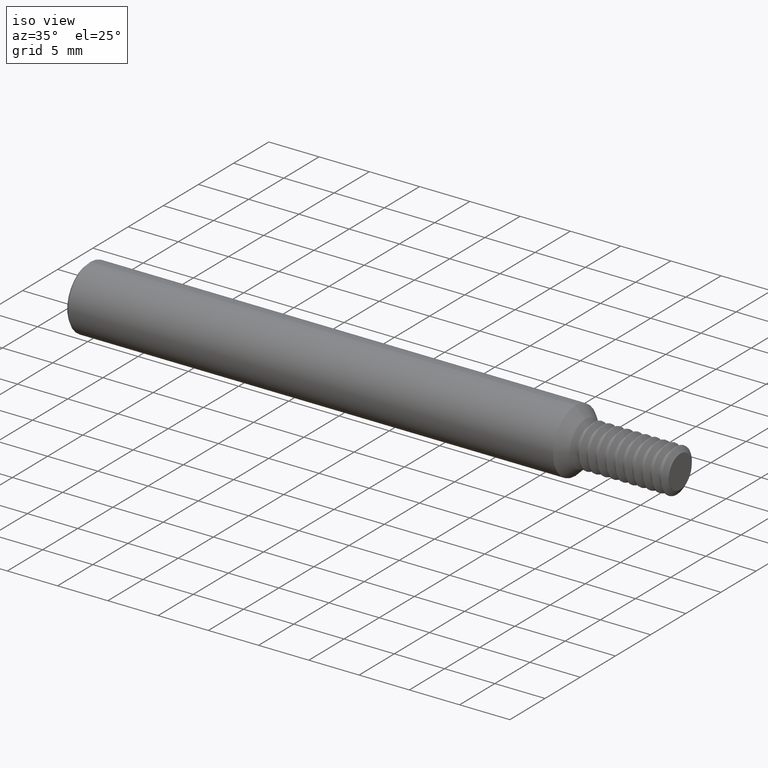
[diagram: clean part render]
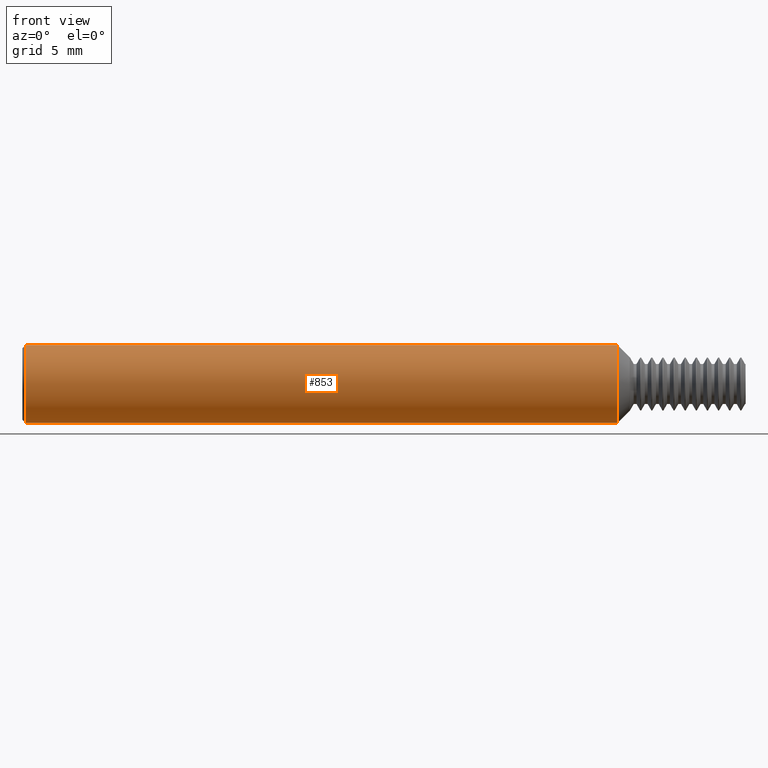
[diagram: tour spotlight — one face highlighted and labeled with its STEP entity id]
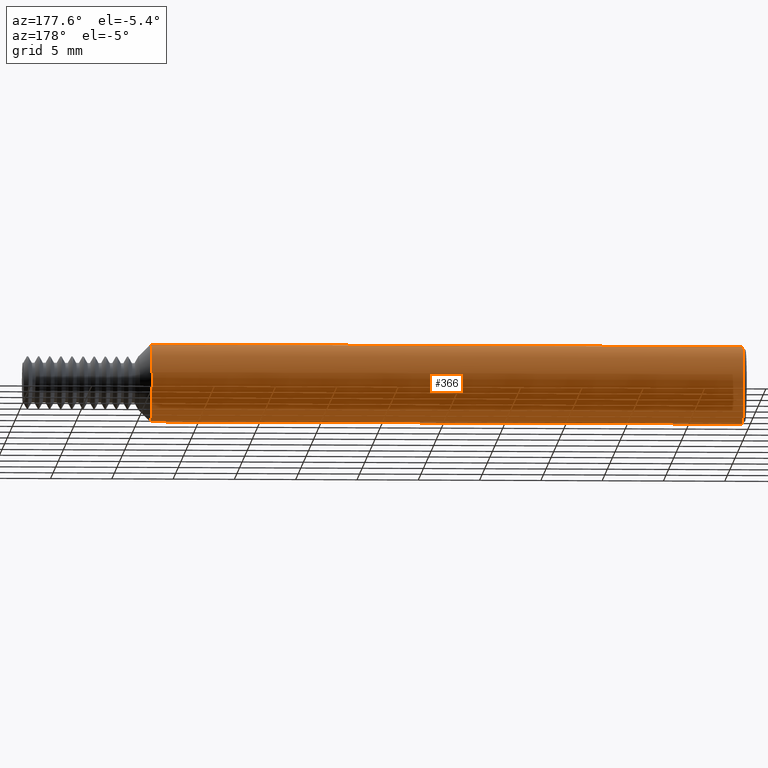
[diagram: tour spotlight — one face highlighted and labeled with its STEP entity id]
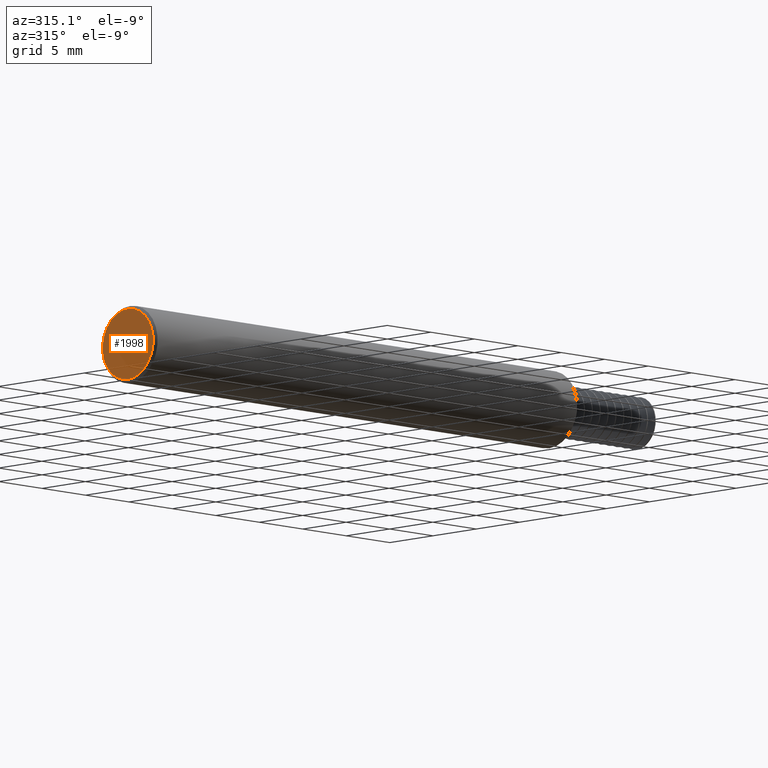
[diagram: tour spotlight — one face highlighted and labeled with its STEP entity id]
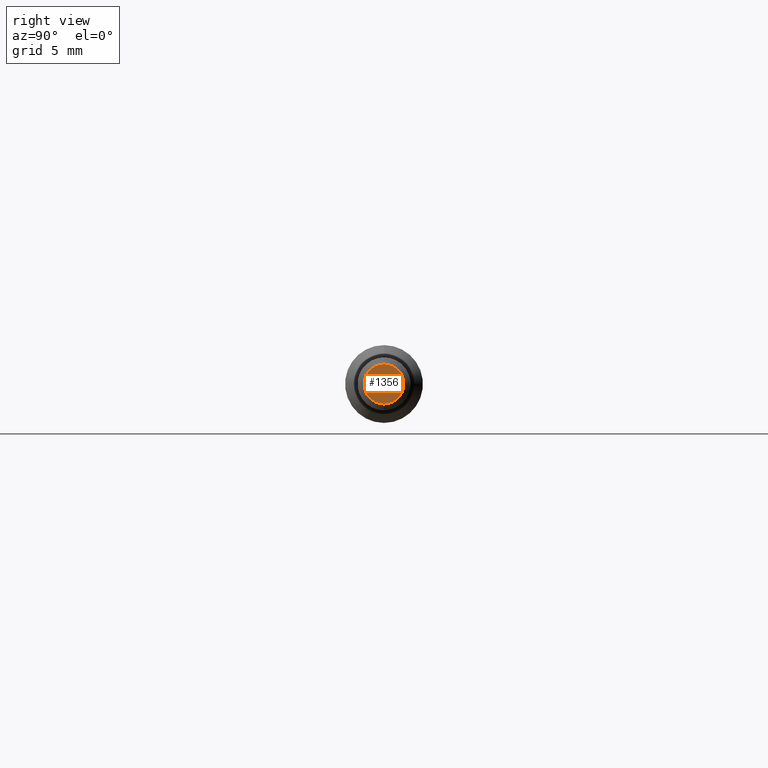
[diagram: tour spotlight — one face highlighted and labeled with its STEP entity id]
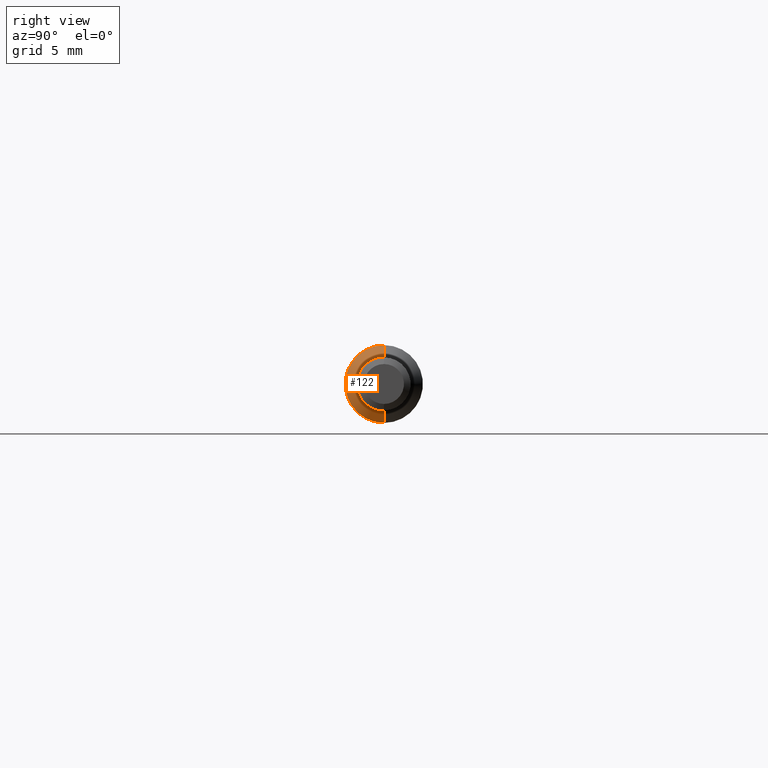
[diagram: tour spotlight — one face highlighted and labeled with its STEP entity id]
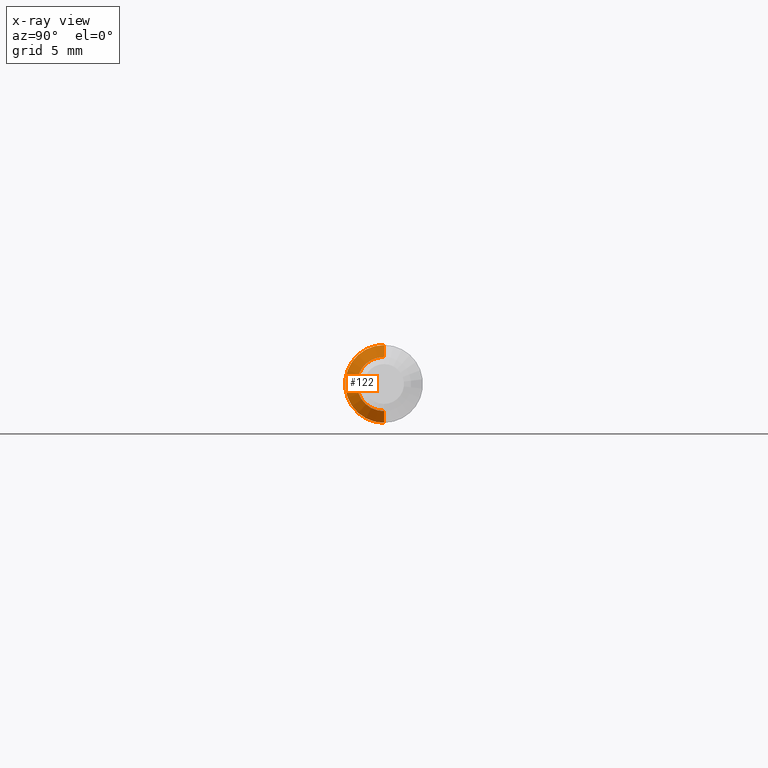
[diagram: x-ray of the same camera — body ghosted, this tour face saturated]
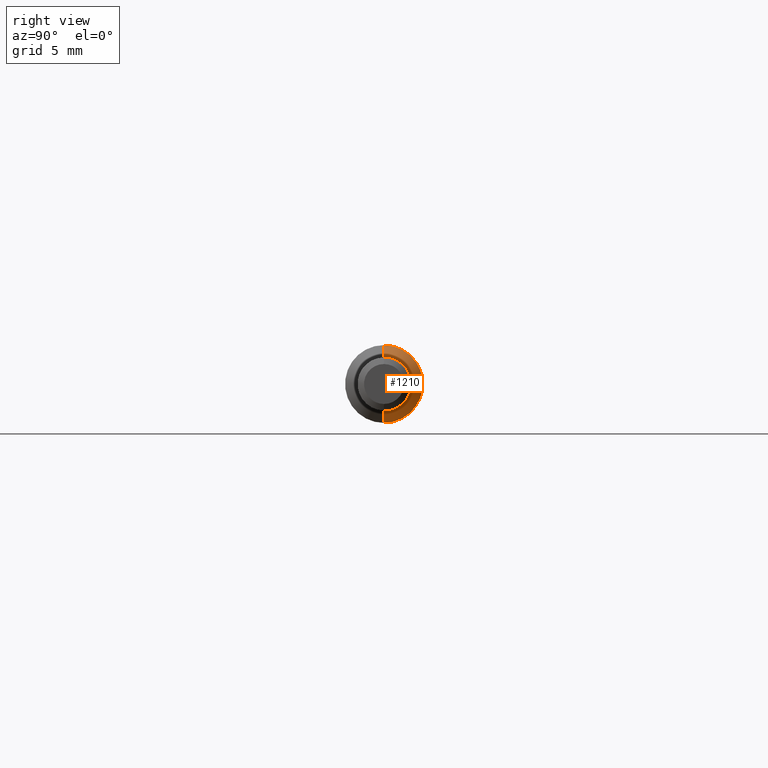
[diagram: tour spotlight — one face highlighted and labeled with its STEP entity id]
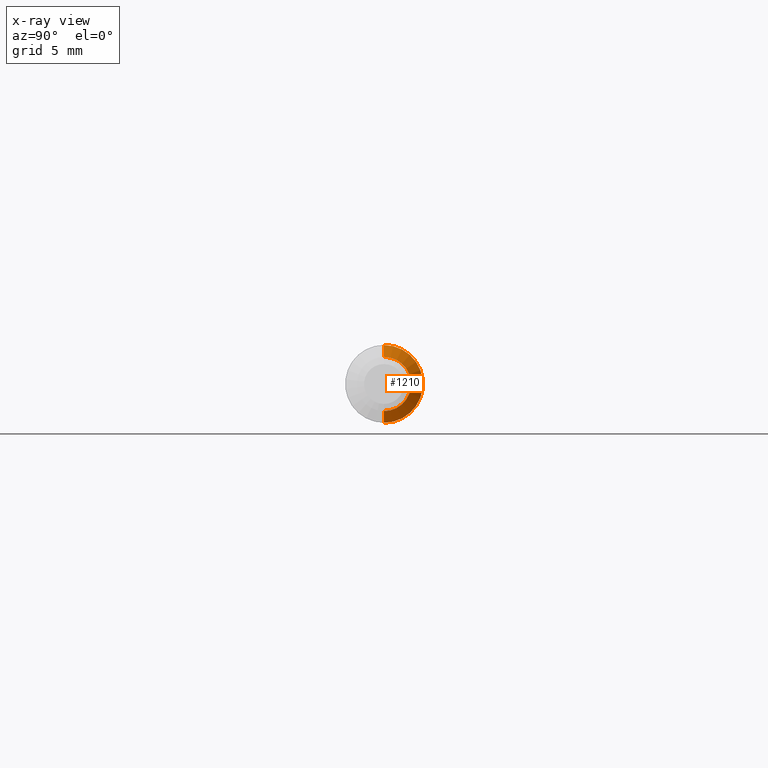
[diagram: x-ray of the same camera — body ghosted, this tour face saturated]
A machine part: a face-by-face anatomy tour. The part has 94 B-rep faces; the first image is the clean iso view, then the 6 largest visible faces are spotlighted one at a time (largest first), each with its STEP entity span.

Face 1 — front view, entity #853. In plain terms, the highlighted cylindrical surface (partial cylindrical patch) has radius 3.1712 mm, axis along (-1, -0, -0).
Definition (entity closure, byte-faithful):
#43 = CARTESIAN_POINT ( 'NONE',  ( 0.000000000000000000, 1.528971528735470422E-17, -0.1248500000000000026 ) ) ;
#117 = CARTESIAN_POINT ( 'NONE',  ( 0.000000000000000000, 0.000000000000000000, 0.000000000000000000 ) ) ;
#163 = DIRECTION ( 'NONE',  ( 0.000000000000000000, 0.000000000000000000, 1.000000000000000000 ) ) ;
#176 = EDGE_CURVE ( 'NONE', #615, #1362, #1565, .T. ) ;
#224 = LINE ( 'NONE', #43, #1888 ) ;
#234 = ORIENTED_EDGE ( 'NONE', *, *, #1654, .F. ) ;
#264 = CIRCLE ( 'NONE', #460, 0.1248500000000000026 ) ;
#460 = AXIS2_PLACEMENT_3D ( 'NONE', #1478, #551, #163 ) ;
#536 = VECTOR ( 'NONE', #1962, 39.37007874015748143 ) ;
#551 = DIRECTION ( 'NONE',  ( -1.000000000000000000, -0.000000000000000000, -0.000000000000000000 ) ) ;
#559 = CIRCLE ( 'NONE', #720, 0.1248500000000000026 ) ;
#615 = VERTEX_POINT ( 'NONE', #1095 ) ;
#632 = DIRECTION ( 'NONE',  ( -1.000000000000000000, -0.000000000000000000, -0.000000000000000000 ) ) ;
#647 = EDGE_CURVE ( 'NONE', #1960, #615, #264, .T. ) ;
#660 = CYLINDRICAL_SURFACE ( 'NONE', #1166, 0.1248500000000000026 ) ;
#720 = AXIS2_PLACEMENT_3D ( 'NONE', #1809, #1232, #1208 ) ;
#791 = DIRECTION ( 'NONE',  ( -1.000000000000000000, -0.000000000000000000, -0.000000000000000000 ) ) ;
#853 = ADVANCED_FACE ( 'NONE', ( #1995 ), #660, .T. ) ;
#937 = VERTEX_POINT ( 'NONE', #2160 ) ;
#1095 = CARTESIAN_POINT ( 'NONE',  ( 1.910150000000000015, 0.000000000000000000, 0.1248500000000000026 ) ) ;
#1164 = ORIENTED_EDGE ( 'NONE', *, *, #647, .T. ) ;
#1166 = AXIS2_PLACEMENT_3D ( 'NONE', #117, #632, #1944 ) ;
#1186 = EDGE_LOOP ( 'NONE', ( #234, #1164, #1246, #2011 ) ) ;
#1208 = DIRECTION ( 'NONE',  ( 0.000000000000000000, 0.000000000000000000, -1.000000000000000000 ) ) ;
#1225 = CARTESIAN_POINT ( 'NONE',  ( 0.009999999999999620304, 1.528971528735470422E-17, 0.1248500000000000026 ) ) ;
#1232 = DIRECTION ( 'NONE',  ( 1.000000000000000000, 0.000000000000000000, 0.000000000000000000 ) ) ;
#1241 = CARTESIAN_POINT ( 'NONE',  ( 1.910150000000000015, 1.528971528735470422E-17, -0.1248500000000000026 ) ) ;
#1246 = ORIENTED_EDGE ( 'NONE', *, *, #176, .T. ) ;
#1362 = VERTEX_POINT ( 'NONE', #1225 ) ;
#1478 = CARTESIAN_POINT ( 'NONE',  ( 1.910150000000000015, 0.000000000000000000, 0.000000000000000000 ) ) ;
#1565 = LINE ( 'NONE', #1991, #536 ) ;
#1654 = EDGE_CURVE ( 'NONE', #1960, #937, #224, .T. ) ;
#1765 = EDGE_CURVE ( 'NONE', #1362, #937, #559, .T. ) ;
#1809 = CARTESIAN_POINT ( 'NONE',  ( 0.009999999999999620304, 0.000000000000000000, 0.000000000000000000 ) ) ;
#1888 = VECTOR ( 'NONE', #791, 39.37007874015748143 ) ;
#1944 = DIRECTION ( 'NONE',  ( 0.000000000000000000, 0.000000000000000000, 1.000000000000000000 ) ) ;
#1960 = VERTEX_POINT ( 'NONE', #1241 ) ;
#1962 = DIRECTION ( 'NONE',  ( -1.000000000000000000, -0.000000000000000000, -0.000000000000000000 ) ) ;
#1991 = CARTESIAN_POINT ( 'NONE',  ( 0.000000000000000000, 0.000000000000000000, 0.1248500000000000026 ) ) ;
#1995 = FACE_OUTER_BOUND ( 'NONE', #1186, .T. ) ;
#2011 = ORIENTED_EDGE ( 'NONE', *, *, #1765, .T. ) ;
#2160 = CARTESIAN_POINT ( 'NONE',  ( 0.009999999999999620304, 0.000000000000000000, -0.1248500000000000026 ) ) ;

Face 2 — auxiliary view, entity #366. In plain terms, the highlighted cylindrical surface (partial cylindrical patch) has radius 3.1712 mm, axis along (-1, -0, -0).
Definition (entity closure, byte-faithful):
#43 = CARTESIAN_POINT ( 'NONE',  ( 0.000000000000000000, 1.528971528735470422E-17, -0.1248500000000000026 ) ) ;
#59 = EDGE_LOOP ( 'NONE', ( #168, #778, #1247, #611 ) ) ;
#168 = ORIENTED_EDGE ( 'NONE', *, *, #593, .T. ) ;
#176 = EDGE_CURVE ( 'NONE', #615, #1362, #1565, .T. ) ;
#224 = LINE ( 'NONE', #43, #1888 ) ;
#360 = CARTESIAN_POINT ( 'NONE',  ( 0.000000000000000000, 0.000000000000000000, 0.000000000000000000 ) ) ;
#366 = ADVANCED_FACE ( 'NONE', ( #910 ), #544, .T. ) ;
#536 = VECTOR ( 'NONE', #1962, 39.37007874015748143 ) ;
#544 = CYLINDRICAL_SURFACE ( 'NONE', #1429, 0.1248500000000000026 ) ;
#593 = EDGE_CURVE ( 'NONE', #615, #1960, #1910, .T. ) ;
#611 = ORIENTED_EDGE ( 'NONE', *, *, #176, .F. ) ;
#615 = VERTEX_POINT ( 'NONE', #1095 ) ;
#778 = ORIENTED_EDGE ( 'NONE', *, *, #1654, .T. ) ;
#791 = DIRECTION ( 'NONE',  ( -1.000000000000000000, -0.000000000000000000, -0.000000000000000000 ) ) ;
#910 = FACE_OUTER_BOUND ( 'NONE', #59, .T. ) ;
#913 = CIRCLE ( 'NONE', #2171, 0.1248500000000000026 ) ;
#918 = DIRECTION ( 'NONE',  ( -1.000000000000000000, -0.000000000000000000, -0.000000000000000000 ) ) ;
#937 = VERTEX_POINT ( 'NONE', #2160 ) ;
#1095 = CARTESIAN_POINT ( 'NONE',  ( 1.910150000000000015, 0.000000000000000000, 0.1248500000000000026 ) ) ;
#1109 = DIRECTION ( 'NONE',  ( -1.000000000000000000, -0.000000000000000000, -0.000000000000000000 ) ) ;
#1225 = CARTESIAN_POINT ( 'NONE',  ( 0.009999999999999620304, 1.528971528735470422E-17, 0.1248500000000000026 ) ) ;
#1241 = CARTESIAN_POINT ( 'NONE',  ( 1.910150000000000015, 1.528971528735470422E-17, -0.1248500000000000026 ) ) ;
#1247 = ORIENTED_EDGE ( 'NONE', *, *, #2063, .T. ) ;
#1362 = VERTEX_POINT ( 'NONE', #1225 ) ;
#1429 = AXIS2_PLACEMENT_3D ( 'NONE', #360, #1109, #2002 ) ;
#1565 = LINE ( 'NONE', #1991, #536 ) ;
#1652 = DIRECTION ( 'NONE',  ( 0.000000000000000000, 0.000000000000000000, 1.000000000000000000 ) ) ;
#1654 = EDGE_CURVE ( 'NONE', #1960, #937, #224, .T. ) ;
#1679 = CARTESIAN_POINT ( 'NONE',  ( 1.910150000000000015, 0.000000000000000000, 0.000000000000000000 ) ) ;
#1806 = DIRECTION ( 'NONE',  ( 0.000000000000000000, 0.000000000000000000, -1.000000000000000000 ) ) ;
#1888 = VECTOR ( 'NONE', #791, 39.37007874015748143 ) ;
#1910 = CIRCLE ( 'NONE', #2271, 0.1248500000000000026 ) ;
#1960 = VERTEX_POINT ( 'NONE', #1241 ) ;
#1962 = DIRECTION ( 'NONE',  ( -1.000000000000000000, -0.000000000000000000, -0.000000000000000000 ) ) ;
#1991 = CARTESIAN_POINT ( 'NONE',  ( 0.000000000000000000, 0.000000000000000000, 0.1248500000000000026 ) ) ;
#2002 = DIRECTION ( 'NONE',  ( 0.000000000000000000, 0.000000000000000000, 1.000000000000000000 ) ) ;
#2022 = CARTESIAN_POINT ( 'NONE',  ( 0.009999999999999620304, 0.000000000000000000, 0.000000000000000000 ) ) ;
#2063 = EDGE_CURVE ( 'NONE', #937, #1362, #913, .T. ) ;
#2160 = CARTESIAN_POINT ( 'NONE',  ( 0.009999999999999620304, 0.000000000000000000, -0.1248500000000000026 ) ) ;
#2171 = AXIS2_PLACEMENT_3D ( 'NONE', #2022, #2416, #1806 ) ;
#2271 = AXIS2_PLACEMENT_3D ( 'NONE', #1679, #918, #1652 ) ;
#2416 = DIRECTION ( 'NONE',  ( 1.000000000000000000, 0.000000000000000000, 0.000000000000000000 ) ) ;

Face 3 — auxiliary view, entity #1998. In plain terms, the highlighted planar face has unit normal (1, 0, 0).
Definition (entity closure, byte-faithful):
#27 = CIRCLE ( 'NONE', #2414, 0.1148500000000005489 ) ;
#111 = VERTEX_POINT ( 'NONE', #2179 ) ;
#319 = CARTESIAN_POINT ( 'NONE',  ( 0.000000000000000000, 0.000000000000000000, 0.000000000000000000 ) ) ;
#358 = DIRECTION ( 'NONE',  ( -1.000000000000000000, -0.000000000000000000, -0.000000000000000000 ) ) ;
#509 = DIRECTION ( 'NONE',  ( 0.000000000000000000, 0.000000000000000000, -1.000000000000000000 ) ) ;
#642 = DIRECTION ( 'NONE',  ( -1.000000000000000000, -0.000000000000000000, -0.000000000000000000 ) ) ;
#701 = EDGE_LOOP ( 'NONE', ( #1865, #796 ) ) ;
#796 = ORIENTED_EDGE ( 'NONE', *, *, #1911, .T. ) ;
#836 = DIRECTION ( 'NONE',  ( 0.000000000000000000, 0.000000000000000000, -1.000000000000000000 ) ) ;
#1028 = AXIS2_PLACEMENT_3D ( 'NONE', #319, #1846, #509 ) ;
#1353 = VERTEX_POINT ( 'NONE', #2351 ) ;
#1438 = FACE_OUTER_BOUND ( 'NONE', #701, .T. ) ;
#1454 = CIRCLE ( 'NONE', #2091, 0.1148500000000005489 ) ;
#1846 = DIRECTION ( 'NONE',  ( 1.000000000000000000, 0.000000000000000000, 0.000000000000000000 ) ) ;
#1865 = ORIENTED_EDGE ( 'NONE', *, *, #2330, .T. ) ;
#1886 = DIRECTION ( 'NONE',  ( 0.000000000000000000, 0.000000000000000000, -1.000000000000000000 ) ) ;
#1911 = EDGE_CURVE ( 'NONE', #111, #1353, #1454, .T. ) ;
#1998 = ADVANCED_FACE ( 'NONE', ( #1438 ), #2391, .F. ) ;
#2062 = CARTESIAN_POINT ( 'NONE',  ( 0.000000000000000000, 0.000000000000000000, 0.000000000000000000 ) ) ;
#2091 = AXIS2_PLACEMENT_3D ( 'NONE', #2062, #358, #1886 ) ;
#2179 = CARTESIAN_POINT ( 'NONE',  ( 0.000000000000000000, 1.467739188778106286E-17, 0.1148500000000005489 ) ) ;
#2322 = CARTESIAN_POINT ( 'NONE',  ( 0.000000000000000000, 0.000000000000000000, 0.000000000000000000 ) ) ;
#2330 = EDGE_CURVE ( 'NONE', #1353, #111, #27, .T. ) ;
#2351 = CARTESIAN_POINT ( 'NONE',  ( 0.000000000000000000, 0.000000000000000000, -0.1148500000000005489 ) ) ;
#2391 = PLANE ( 'NONE',  #1028 ) ;
#2414 = AXIS2_PLACEMENT_3D ( 'NONE', #2322, #642, #836 ) ;

Face 4 — right view, entity #1356. In plain terms, the highlighted planar face has unit normal (-1, 0, -0).
Definition (entity closure, byte-faithful):
#710 = CIRCLE ( 'NONE', #2082, 0.06412455631191948946 ) ;
#724 = AXIS2_PLACEMENT_3D ( 'NONE', #1596, #1404, #2167 ) ;
#747 = DIRECTION ( 'NONE',  ( 1.000000000000000000, 0.000000000000000000, 0.000000000000000000 ) ) ;
#753 = DIRECTION ( 'NONE',  ( 1.000000000000000000, 0.000000000000000000, 0.000000000000000000 ) ) ;
#849 = PLANE ( 'NONE',  #724 ) ;
#858 = VERTEX_POINT ( 'NONE', #1599 ) ;
#889 = CIRCLE ( 'NONE', #2268, 0.06412455631191948946 ) ;
#921 = CARTESIAN_POINT ( 'NONE',  ( 2.320594934426367661, 0.000000000000000000, 0.06412455631191948946 ) ) ;
#992 = EDGE_CURVE ( 'NONE', #1883, #858, #889, .T. ) ;
#1256 = ORIENTED_EDGE ( 'NONE', *, *, #992, .T. ) ;
#1266 = DIRECTION ( 'NONE',  ( 0.000000000000000000, 0.000000000000000000, 1.000000000000000000 ) ) ;
#1356 = ADVANCED_FACE ( 'NONE', ( #1776 ), #849, .F. ) ;
#1404 = DIRECTION ( 'NONE',  ( -1.000000000000000000, 0.000000000000000000, -0.000000000000000000 ) ) ;
#1493 = DIRECTION ( 'NONE',  ( 0.000000000000000000, 0.000000000000000000, 1.000000000000000000 ) ) ;
#1560 = EDGE_CURVE ( 'NONE', #858, #1883, #710, .T. ) ;
#1596 = CARTESIAN_POINT ( 'NONE',  ( 2.320594934426367661, 0.1755685738156082254, -0.1248500000000000026 ) ) ;
#1599 = CARTESIAN_POINT ( 'NONE',  ( 2.320594934426367661, 7.852993263413640175E-18, -0.06412455631191948946 ) ) ;
#1609 = ORIENTED_EDGE ( 'NONE', *, *, #1560, .T. ) ;
#1776 = FACE_OUTER_BOUND ( 'NONE', #2237, .T. ) ;
#1883 = VERTEX_POINT ( 'NONE', #921 ) ;
#2021 = CARTESIAN_POINT ( 'NONE',  ( 2.320594934426367661, 0.000000000000000000, 0.000000000000000000 ) ) ;
#2053 = CARTESIAN_POINT ( 'NONE',  ( 2.320594934426367661, 0.000000000000000000, 0.000000000000000000 ) ) ;
#2082 = AXIS2_PLACEMENT_3D ( 'NONE', #2053, #753, #1493 ) ;
#2167 = DIRECTION ( 'NONE',  ( -0.000000000000000000, 0.000000000000000000, 1.000000000000000000 ) ) ;
#2237 = EDGE_LOOP ( 'NONE', ( #1256, #1609 ) ) ;
#2268 = AXIS2_PLACEMENT_3D ( 'NONE', #2021, #747, #1266 ) ;

Face 5 — right view, entity #122. An x-ray twin of the same camera follows (body ghosted, this face saturated) — the face is partly hidden behind the body. In plain terms, the highlighted conical surface has half-angle 45 deg.
Definition (entity closure, byte-faithful):
#94 = CARTESIAN_POINT ( 'NONE',  ( 1.948000000000000176, 1.065442715258197088E-17, -0.08699999999999999400 ) ) ;
#122 = ADVANCED_FACE ( 'NONE', ( #1595 ), #341, .T. ) ;
#134 = CARTESIAN_POINT ( 'NONE',  ( 1.948000000000000176, 0.000000000000000000, 0.08699999999999999400 ) ) ;
#139 = ORIENTED_EDGE ( 'NONE', *, *, #531, .F. ) ;
#163 = DIRECTION ( 'NONE',  ( 0.000000000000000000, 0.000000000000000000, 1.000000000000000000 ) ) ;
#195 = DIRECTION ( 'NONE',  ( 0.000000000000000000, 0.000000000000000000, 1.000000000000000000 ) ) ;
#264 = CIRCLE ( 'NONE', #460, 0.1248500000000000026 ) ;
#303 = VECTOR ( 'NONE', #500, 39.37007874015748143 ) ;
#321 = LINE ( 'NONE', #94, #970 ) ;
#341 = CONICAL_SURFACE ( 'NONE', #1708, 0.08699999999999999400, 0.7853981633974487231 ) ;
#449 = EDGE_CURVE ( 'NONE', #1380, #615, #1398, .T. ) ;
#460 = AXIS2_PLACEMENT_3D ( 'NONE', #1478, #551, #163 ) ;
#500 = DIRECTION ( 'NONE',  ( -0.7071067811865472397, 0.000000000000000000, 0.7071067811865477948 ) ) ;
#521 = CARTESIAN_POINT ( 'NONE',  ( 1.948000000000000176, 1.297207121996833909E-17, -0.08699999999999999400 ) ) ;
#531 = EDGE_CURVE ( 'NONE', #982, #1960, #321, .T. ) ;
#551 = DIRECTION ( 'NONE',  ( -1.000000000000000000, -0.000000000000000000, -0.000000000000000000 ) ) ;
#615 = VERTEX_POINT ( 'NONE', #1095 ) ;
#647 = EDGE_CURVE ( 'NONE', #1960, #615, #264, .T. ) ;
#686 = ORIENTED_EDGE ( 'NONE', *, *, #2169, .T. ) ;
#795 = DIRECTION ( 'NONE',  ( -1.000000000000000000, -0.000000000000000000, -0.000000000000000000 ) ) ;
#870 = DIRECTION ( 'NONE',  ( -1.000000000000000000, -0.000000000000000000, -0.000000000000000000 ) ) ;
#961 = ORIENTED_EDGE ( 'NONE', *, *, #647, .F. ) ;
#970 = VECTOR ( 'NONE', #2404, 39.37007874015748143 ) ;
#982 = VERTEX_POINT ( 'NONE', #521 ) ;
#1095 = CARTESIAN_POINT ( 'NONE',  ( 1.910150000000000015, 0.000000000000000000, 0.1248500000000000026 ) ) ;
#1201 = CARTESIAN_POINT ( 'NONE',  ( 1.948000000000000176, 0.000000000000000000, 0.000000000000000000 ) ) ;
#1241 = CARTESIAN_POINT ( 'NONE',  ( 1.910150000000000015, 1.528971528735470422E-17, -0.1248500000000000026 ) ) ;
#1364 = DIRECTION ( 'NONE',  ( 0.000000000000000000, 0.000000000000000000, 1.000000000000000000 ) ) ;
#1380 = VERTEX_POINT ( 'NONE', #2181 ) ;
#1398 = LINE ( 'NONE', #134, #303 ) ;
#1400 = ORIENTED_EDGE ( 'NONE', *, *, #449, .T. ) ;
#1478 = CARTESIAN_POINT ( 'NONE',  ( 1.910150000000000015, 0.000000000000000000, 0.000000000000000000 ) ) ;
#1584 = AXIS2_PLACEMENT_3D ( 'NONE', #2249, #795, #195 ) ;
#1595 = FACE_OUTER_BOUND ( 'NONE', #2318, .T. ) ;
#1708 = AXIS2_PLACEMENT_3D ( 'NONE', #1201, #870, #1364 ) ;
#1960 = VERTEX_POINT ( 'NONE', #1241 ) ;
#1981 = CIRCLE ( 'NONE', #1584, 0.08699999999999999400 ) ;
#2169 = EDGE_CURVE ( 'NONE', #982, #1380, #1981, .T. ) ;
#2181 = CARTESIAN_POINT ( 'NONE',  ( 1.948000000000000176, 0.000000000000000000, 0.08699999999999999400 ) ) ;
#2249 = CARTESIAN_POINT ( 'NONE',  ( 1.948000000000000176, 0.000000000000000000, 0.000000000000000000 ) ) ;
#2318 = EDGE_LOOP ( 'NONE', ( #139, #686, #1400, #961 ) ) ;
#2404 = DIRECTION ( 'NONE',  ( -0.7071067811865472397, 8.659560562354936556E-17, -0.7071067811865477948 ) ) ;

Face 6 — right view, entity #1210. An x-ray twin of the same camera follows (body ghosted, this face saturated) — the face is partly hidden behind the body. In plain terms, the highlighted conical surface has half-angle 45 deg.
Definition (entity closure, byte-faithful):
#24 = CARTESIAN_POINT ( 'NONE',  ( 1.948000000000000176, 0.000000000000000000, 0.000000000000000000 ) ) ;
#94 = CARTESIAN_POINT ( 'NONE',  ( 1.948000000000000176, 1.065442715258197088E-17, -0.08699999999999999400 ) ) ;
#134 = CARTESIAN_POINT ( 'NONE',  ( 1.948000000000000176, 0.000000000000000000, 0.08699999999999999400 ) ) ;
#214 = FACE_OUTER_BOUND ( 'NONE', #1922, .T. ) ;
#303 = VECTOR ( 'NONE', #500, 39.37007874015748143 ) ;
#321 = LINE ( 'NONE', #94, #970 ) ;
#325 = ORIENTED_EDGE ( 'NONE', *, *, #1228, .T. ) ;
#331 = CIRCLE ( 'NONE', #1074, 0.08699999999999999400 ) ;
#449 = EDGE_CURVE ( 'NONE', #1380, #615, #1398, .T. ) ;
#500 = DIRECTION ( 'NONE',  ( -0.7071067811865472397, 0.000000000000000000, 0.7071067811865477948 ) ) ;
#521 = CARTESIAN_POINT ( 'NONE',  ( 1.948000000000000176, 1.297207121996833909E-17, -0.08699999999999999400 ) ) ;
#531 = EDGE_CURVE ( 'NONE', #982, #1960, #321, .T. ) ;
#593 = EDGE_CURVE ( 'NONE', #615, #1960, #1910, .T. ) ;
#609 = DIRECTION ( 'NONE',  ( -1.000000000000000000, -0.000000000000000000, -0.000000000000000000 ) ) ;
#615 = VERTEX_POINT ( 'NONE', #1095 ) ;
#638 = CONICAL_SURFACE ( 'NONE', #762, 0.08699999999999999400, 0.7853981633974487231 ) ;
#762 = AXIS2_PLACEMENT_3D ( 'NONE', #24, #966, #1713 ) ;
#918 = DIRECTION ( 'NONE',  ( -1.000000000000000000, -0.000000000000000000, -0.000000000000000000 ) ) ;
#966 = DIRECTION ( 'NONE',  ( -1.000000000000000000, -0.000000000000000000, -0.000000000000000000 ) ) ;
#970 = VECTOR ( 'NONE', #2404, 39.37007874015748143 ) ;
#982 = VERTEX_POINT ( 'NONE', #521 ) ;
#1074 = AXIS2_PLACEMENT_3D ( 'NONE', #2293, #609, #1345 ) ;
#1095 = CARTESIAN_POINT ( 'NONE',  ( 1.910150000000000015, 0.000000000000000000, 0.1248500000000000026 ) ) ;
#1210 = ADVANCED_FACE ( 'NONE', ( #214 ), #638, .T. ) ;
#1228 = EDGE_CURVE ( 'NONE', #1380, #982, #331, .T. ) ;
#1241 = CARTESIAN_POINT ( 'NONE',  ( 1.910150000000000015, 1.528971528735470422E-17, -0.1248500000000000026 ) ) ;
#1345 = DIRECTION ( 'NONE',  ( 0.000000000000000000, 0.000000000000000000, 1.000000000000000000 ) ) ;
#1380 = VERTEX_POINT ( 'NONE', #2181 ) ;
#1398 = LINE ( 'NONE', #134, #303 ) ;
#1598 = ORIENTED_EDGE ( 'NONE', *, *, #531, .T. ) ;
#1648 = ORIENTED_EDGE ( 'NONE', *, *, #449, .F. ) ;
#1652 = DIRECTION ( 'NONE',  ( 0.000000000000000000, 0.000000000000000000, 1.000000000000000000 ) ) ;
#1679 = CARTESIAN_POINT ( 'NONE',  ( 1.910150000000000015, 0.000000000000000000, 0.000000000000000000 ) ) ;
#1713 = DIRECTION ( 'NONE',  ( 0.000000000000000000, 0.000000000000000000, 1.000000000000000000 ) ) ;
#1910 = CIRCLE ( 'NONE', #2271, 0.1248500000000000026 ) ;
#1922 = EDGE_LOOP ( 'NONE', ( #325, #1598, #1948, #1648 ) ) ;
#1948 = ORIENTED_EDGE ( 'NONE', *, *, #593, .F. ) ;
#1960 = VERTEX_POINT ( 'NONE', #1241 ) ;
#2181 = CARTESIAN_POINT ( 'NONE',  ( 1.948000000000000176, 0.000000000000000000, 0.08699999999999999400 ) ) ;
#2271 = AXIS2_PLACEMENT_3D ( 'NONE', #1679, #918, #1652 ) ;
#2293 = CARTESIAN_POINT ( 'NONE',  ( 1.948000000000000176, 0.000000000000000000, 0.000000000000000000 ) ) ;
#2404 = DIRECTION ( 'NONE',  ( -0.7071067811865472397, 8.659560562354936556E-17, -0.7071067811865477948 ) ) ;